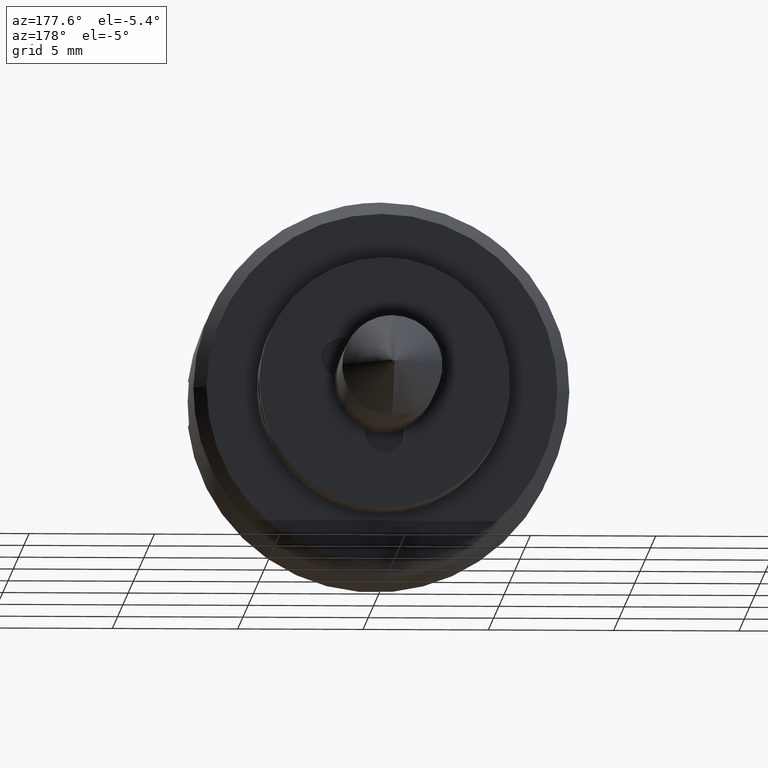
[diagram: clean part render]
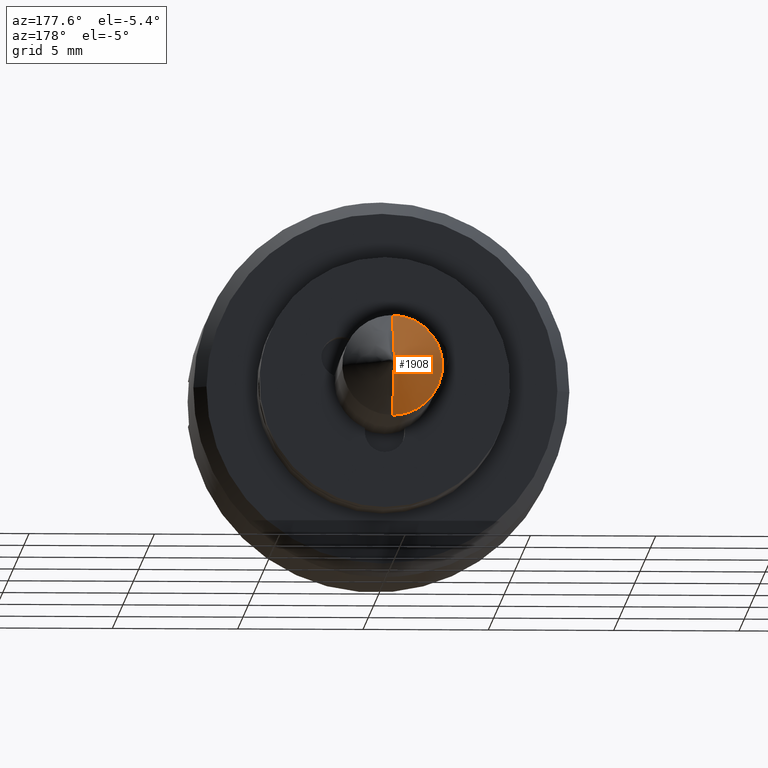
[diagram: same view with one face highlighted and labeled with its STEP entity id]
A machine part, auxiliary view. The second image highlights one B-rep face of the part: STEP entity #1908.
In plain terms, the highlighted face is a freeform B-spline surface patch.
Its self-contained STEP definition (entity closure, byte-faithful):
#855=CARTESIAN_POINT('',(7.999999999999984,1.986019444980033,0.236065169286273));
#856=VERTEX_POINT('',#855);
#857=CARTESIAN_POINT('',(8.000000000000009,0.0,-2.000000000000010));
#858=VERTEX_POINT('',#857);
#859=CARTESIAN_POINT('',(7.999999999999984,1.986019444980033,0.236065169286273));
#860=CARTESIAN_POINT('',(8.0,2.0,0.118446571846876));
#861=CARTESIAN_POINT('',(8.0,2.0,0.0));
#862=CARTESIAN_POINT('',(8.0,2.000000000000000,-2.000000000000000));
#863=CARTESIAN_POINT('',(8.0,0.0,-2.0));
#871=(BOUNDED_CURVE()B_SPLINE_CURVE(2,(#859,#860,#861,#862,#863),.UNSPECIFIED.,.F.,.U.)B_SPLINE_CURVE_WITH_KNOTS((3,2,3),(0.459125508672809,0.500000000000000,1.0),.UNSPECIFIED.)CURVE()GEOMETRIC_REPRESENTATION_ITEM()RATIONAL_B_SPLINE_CURVE((0.956027304608807,0.976056277335633,1.0,0.707106781186548,1.0))REPRESENTATION_ITEM(''));
#872=EDGE_CURVE('',#856,#858,#871,.T.);
#958=CARTESIAN_POINT('',(8.000000000000009,0.0,2.000000000000010));
#959=VERTEX_POINT('',#958);
#960=CARTESIAN_POINT('',(8.0,0.0,2.0));
#961=CARTESIAN_POINT('',(8.0,1.776352024316359,2.0));
#962=CARTESIAN_POINT('',(7.999999999999984,1.986019444980033,0.236065169286273));
#970=(BOUNDED_CURVE()B_SPLINE_CURVE(2,(#960,#961,#962),.UNSPECIFIED.,.F.,.U.)B_SPLINE_CURVE_WITH_KNOTS((3,3),(0.0,0.459125508672809),.UNSPECIFIED.)CURVE()GEOMETRIC_REPRESENTATION_ITEM()RATIONAL_B_SPLINE_CURVE((1.0,0.731050503850915,0.956027304608807))REPRESENTATION_ITEM(''));
#971=EDGE_CURVE('',#959,#856,#970,.T.);
#1779=CARTESIAN_POINT('',(10.0,0.0,0.0));
#1780=VERTEX_POINT('',#1779);
#1781=CARTESIAN_POINT('',(10.0,0.0,0.0));
#1782=CARTESIAN_POINT('',(8.000000000000009,0.0,2.000000000000010));
#1783=QUASI_UNIFORM_CURVE('',1,(#1781,#1782),.UNSPECIFIED.,.F.,.U.);
#1784=EDGE_CURVE('',#1780,#959,#1783,.T.);
#1788=CARTESIAN_POINT('',(10.0,0.0,0.0));
#1789=CARTESIAN_POINT('',(8.000000000000009,0.0,-2.000000000000010));
#1790=QUASI_UNIFORM_CURVE('',1,(#1788,#1789),.UNSPECIFIED.,.F.,.U.);
#1791=EDGE_CURVE('',#1780,#858,#1790,.T.);
#1884=CARTESIAN_POINT('',(10.0,0.0,0.0));
#1885=CARTESIAN_POINT('',(7.948750000000000,-0.017900305941038,-2.051171894685439));
#1886=CARTESIAN_POINT('',(10.0,0.0,0.0));
#1887=CARTESIAN_POINT('',(7.948750000000001,2.106150369800970,-2.069708204113510));
#1888=CARTESIAN_POINT('',(10.0,0.0,0.0));
#1889=CARTESIAN_POINT('',(7.948750000000000,2.050547087856169,0.053695465216527));
#1890=CARTESIAN_POINT('',(10.0,0.0,0.0));
#1891=CARTESIAN_POINT('',(7.948750000000001,1.994943805911369,2.177099134546564));
#1892=CARTESIAN_POINT('',(10.0,0.0,0.0));
#1893=CARTESIAN_POINT('',(7.948750000000000,-0.125225816720878,2.047424005262912));
#1901=(BOUNDED_SURFACE()B_SPLINE_SURFACE(1,2,((#1884,#1886,#1888,#1890,#1892),(#1885,#1887,#1889,#1891,#1893)),.UNSPECIFIED.,.F.,.F.,.U.)B_SPLINE_SURFACE_WITH_KNOTS((2,2),(3,2,3),(0.0,1.0),(0.0,1.0,2.0),.UNSPECIFIED.)GEOMETRIC_REPRESENTATION_ITEM()RATIONAL_B_SPLINE_SURFACE(((1.0,0.694658370458997,1.0,0.694658370458997,1.0),(1.0,0.694658370458997,1.0,0.694658370458997,1.0)))REPRESENTATION_ITEM('')SURFACE());
#1902=ORIENTED_EDGE('',*,*,#1791,.T.);
#1903=ORIENTED_EDGE('',*,*,#872,.F.);
#1904=ORIENTED_EDGE('',*,*,#971,.F.);
#1905=ORIENTED_EDGE('',*,*,#1784,.F.);
#1906=EDGE_LOOP('',(#1902,#1903,#1904,#1905));
#1907=FACE_OUTER_BOUND('',#1906,.T.);
#1908=ADVANCED_FACE('',(#1907),#1901,.T.);